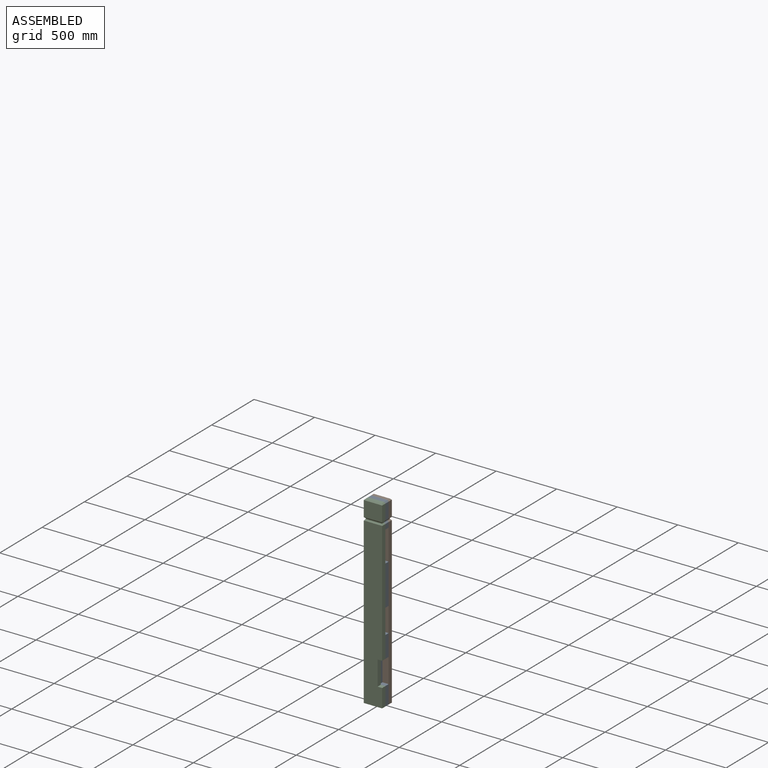
[diagram: assembled view]
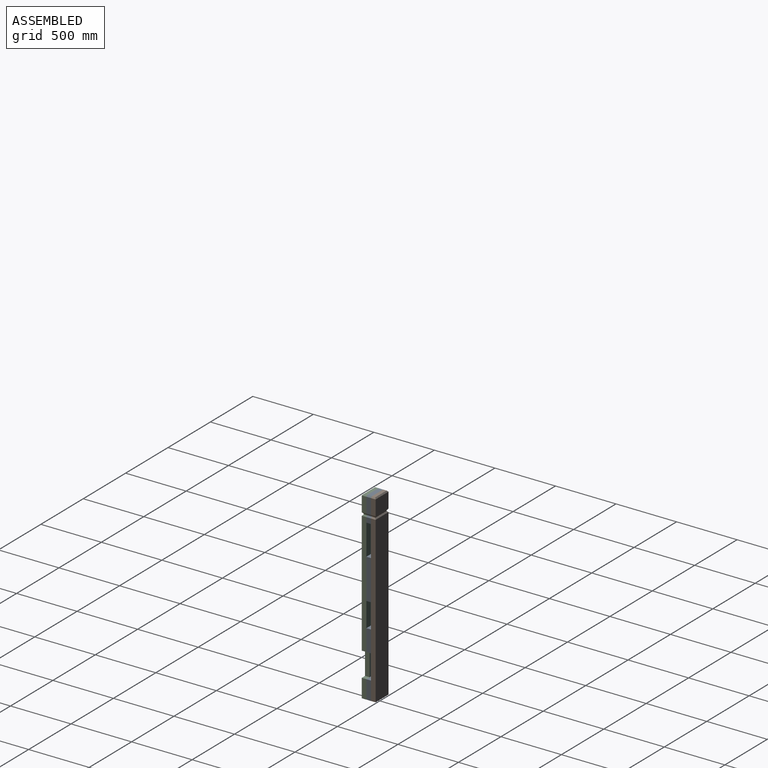
[diagram: assembled view, second angle]
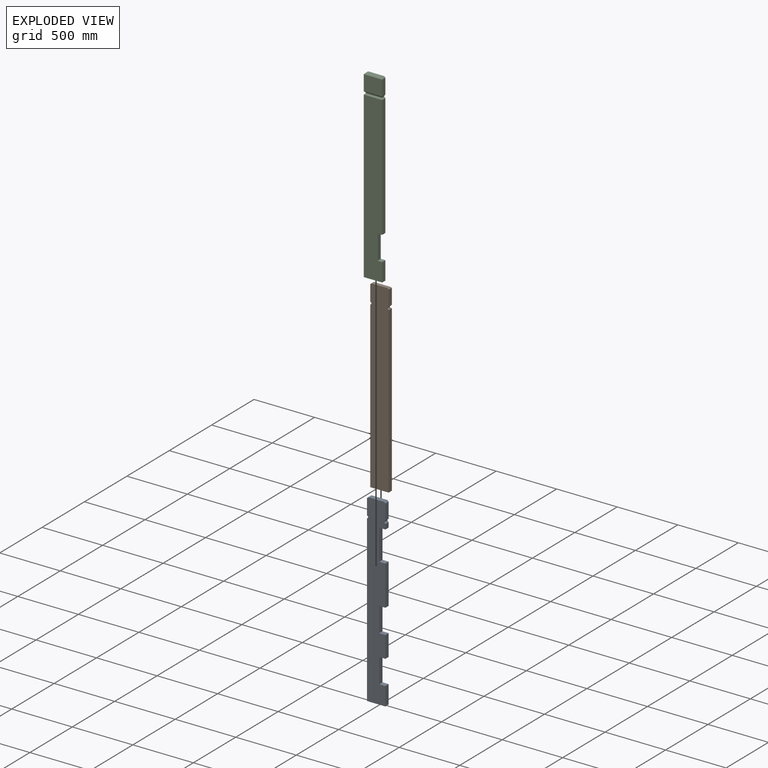
[diagram: exploded view]
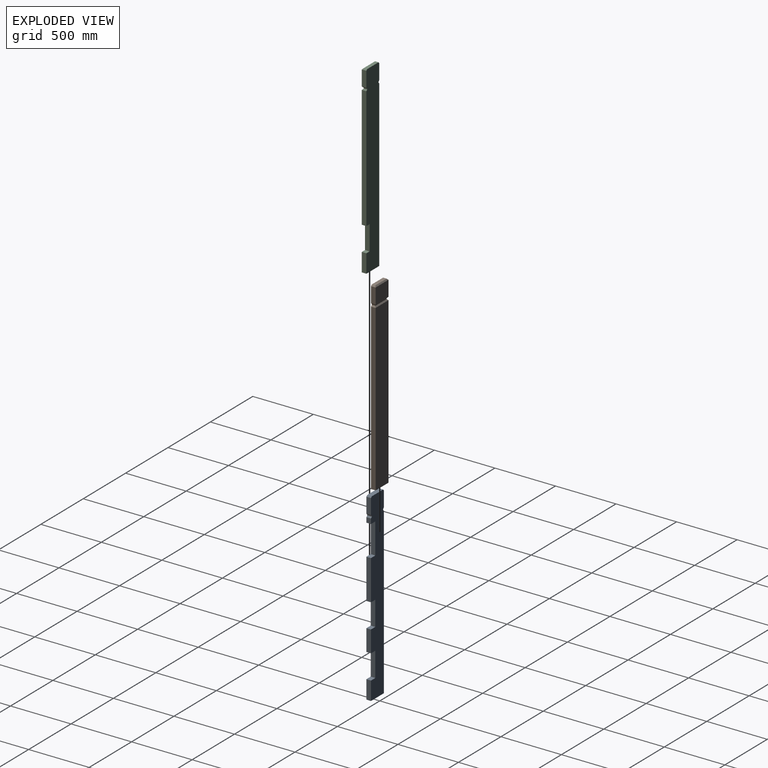
[diagram: exploded view, second angle]
ASSEMBLY  parts=3 mates=2
PART A: 28 faces, bbox 152.4x38.1x1524 mm
  f0: plane 177.8x38.1mm, normal (1,0,0), area 6774.2mm2, adj f4,f5,f13,f25
  f1: plane 127x38.1mm, normal (1,0,0), area 4838.7mm2, adj f4,f5,f20,f23
  f2: plane 127x38.1mm, normal (-1,0,0), area 4838.7mm2, adj f4,f5,f17,f24
  f3: plane 133.35x38.1mm, normal (0,0,1), area 5080.6mm2, adj f4,f5,f23,f24
  f4: plane 1524x152.4mm, normal (0,-1,0), area 198316.1mm2, adj f0,f1,f2,f3,f6,f7,f8,f9
  f5: plane 1524x152.4mm, normal (0,1,0), area 198316.1mm2, adj f0,f1,f2,f3,f6,f7,f8,f9
  f6: plane 41.28x38.1mm, normal (1,0,0), area 1572.6mm2, adj f4,f5,f14,f22
  f7: plane 330.2x38.1mm, normal (1,0,0), area 12580.6mm2, adj f4,f5,f11,f16
  f8: plane 1362.08x38.1mm, normal (-1,0,0), area 51895.1mm2, adj f4,f5,f9,f18
  f9: plane 152.4x38.1mm, normal (0,0,-1), area 5806.4mm2, adj f4,f5,f8,f10
  f10: plane 152.4x38.1mm, normal (1,0,0), area 5806.4mm2, adj f4,f5,f9,f27
  f11: plane 50.8x38.1mm, normal (0,0,-1), area 1935.5mm2, adj f4,f5,f7,f12
  f12: plane 203.2x38.1mm, normal (1,0,0), area 7741.9mm2, adj f4,f5,f11,f13
  f13: plane 50.8x38.1mm, normal (0,0,1), area 1935.5mm2, adj f0,f4,f5,f12
  f14: plane 50.8x38.1mm, normal (0,0,-1), area 1935.5mm2, adj f4,f5,f6,f15
  f15: plane 254x38.1mm, normal (1,0,0), area 9677.4mm2, adj f4,f5,f14,f16
  f16: plane 50.8x38.1mm, normal (0,0,1), area 1935.5mm2, adj f4,f5,f7,f15
  f17: plane 38.1x9.53mm, normal (-0.71,0,-0.71), area 513.2mm2, adj f2,f4,f5,f19
  f18: plane 38.1x9.53mm, normal (-0.71,0,0.71), area 513.2mm2, adj f4,f5,f8,f19
  f19: plane 38.1x6.35mm, normal (-1,0,0), area 241.9mm2, adj f4,f5,f17,f18
  f20: plane 38.1x9.53mm, normal (0.71,0,-0.71), area 513.2mm2, adj f1,f4,f5,f21
  f21: plane 38.1x6.35mm, normal (1,0,0), area 241.9mm2, adj f4,f5,f20,f22
  f22: plane 38.1x9.53mm, normal (0.71,0,0.71), area 513.2mm2, adj f4,f5,f6,f21
  f23: plane 38.1x9.53mm, normal (0.71,0,0.71), area 513.2mm2, adj f1,f3,f4,f5
  f24: plane 38.1x9.53mm, normal (-0.71,0,0.71), area 513.2mm2, adj f2,f3,f4,f5
  f25: plane 50.8x38.1mm, normal (0,0,-1), area 1935.5mm2, adj f0,f4,f5,f26
  f26: plane 203.2x38.1mm, normal (1,0,0), area 7741.9mm2, adj f4,f5,f25,f27
  f27: plane 50.8x38.1mm, normal (0,0,1), area 1935.5mm2, adj f4,f5,f10,f26
PART B: 21 faces, bbox 152.4x38.1x1524 mm
  f0: plane 152.4x127mm, normal (0,1,0), area 19354.8mm2, adj f3,f4,f17,f18
  f1: plane 38.1x9.53mm, normal (0.71,0,0.71), area 449.1mm2, adj f4,f5,f6,f17
  f2: plane 38.1x9.53mm, normal (-0.71,0,0.71), area 449.1mm2, adj f3,f5,f6,f17
  f3: plane 127x38.1mm, normal (-1,0,0), area 4838.7mm2, adj f0,f2,f6,f11
  f4: plane 127x38.1mm, normal (1,0,0), area 4838.7mm2, adj f0,f1,f6,f14
  f5: plane 133.35x28.58mm, normal (0,0,1), area 3810.5mm2, adj f1,f2,f6,f17
  f6: plane 1524x152.4mm, normal (0,-1,0), area 231864.5mm2, adj f1,f2,f3,f4,f5,f8,f9,f10
  f7: plane 1362.08x152.4mm, normal (0,1,0), area 207580.2mm2, adj f8,f9,f10,f20
  f8: plane 1362.08x38.1mm, normal (-1,0,0), area 51895.1mm2, adj f6,f7,f9,f12
  f9: plane 152.4x38.1mm, normal (0,0,-1), area 5806.4mm2, adj f6,f7,f8,f10
  f10: plane 1362.08x38.1mm, normal (1,0,0), area 51895.1mm2, adj f6,f7,f9,f16
  f11: plane 38.1x9.53mm, normal (-0.71,0,-0.71), area 449.1mm2, adj f3,f6,f13,f18
  f12: plane 38.1x9.53mm, normal (-0.71,0,0.71), area 449.1mm2, adj f6,f8,f13,f20
  f13: plane 28.58x6.35mm, normal (-1,0,0), area 181.5mm2, adj f6,f11,f12,f19
  f14: plane 38.1x9.53mm, normal (0.71,0,-0.71), area 449.1mm2, adj f4,f6,f15,f18
  f15: plane 28.58x6.35mm, normal (1,0,0), area 181.5mm2, adj f6,f14,f16,f19
  f16: plane 38.1x9.53mm, normal (0.71,0,0.71), area 449.1mm2, adj f6,f10,f15,f20
  f17: plane 152.4x9.53mm, normal (0,0.71,0.71), area 1924.6mm2, adj f0,f1,f2,f5
  f18: plane 152.4x9.53mm, normal (0,0.71,-0.71), area 1924.6mm2, adj f0,f11,f14,f19
  f19: plane 133.35x6.35mm, normal (0,1,0), area 846.8mm2, adj f13,f15,f18,f20
  f20: plane 152.4x9.53mm, normal (0,0.71,0.71), area 1924.6mm2, adj f7,f12,f16,f19
PART C: 25 faces, bbox 152.4x38.1x1524 mm
  f0: plane 133.35x28.58mm, normal (0,0,1), area 3810.5mm2, adj f12,f16,f17,f21
  f1: plane 152.4x127mm, normal (0,-1,0), area 19354.8mm2, adj f9,f10,f21,f22
  f2: plane 38.1x9.53mm, normal (-0.71,0,-0.71), area 449.1mm2, adj f4,f9,f12,f22
  f3: plane 38.1x9.53mm, normal (-0.71,0,0.71), area 449.1mm2, adj f4,f12,f13,f24
  f4: plane 28.58x6.35mm, normal (-1,0,0), area 181.5mm2, adj f2,f3,f12,f23
  f5: plane 38.1x9.53mm, normal (0.71,0,-0.71), area 449.1mm2, adj f6,f10,f12,f22
  f6: plane 28.58x6.35mm, normal (1,0,0), area 181.5mm2, adj f5,f7,f12,f23
  f7: plane 38.1x9.53mm, normal (0.71,0,0.71), area 449.1mm2, adj f6,f8,f12,f24
  f8: plane 1006.48x38.1mm, normal (1,0,0), area 38346.7mm2, adj f7,f11,f12,f18
  f9: plane 127x38.1mm, normal (-1,0,0), area 4838.7mm2, adj f1,f2,f12,f17
  f10: plane 127x38.1mm, normal (1,0,0), area 4838.7mm2, adj f1,f5,f12,f16
  f11: plane 1362.08x152.4mm, normal (0,-1,0), area 199838.3mm2, adj f8,f13,f14,f15,f18,f19,f20,f24
  f12: plane 1524x152.4mm, normal (0,1,0), area 224122.5mm2, adj f0,f2,f3,f4,f5,f6,f7,f8
  f13: plane 1362.08x38.1mm, normal (-1,0,0), area 51895.1mm2, adj f3,f11,f12,f14
  f14: plane 152.4x38.1mm, normal (0,0,-1), area 5806.4mm2, adj f11,f12,f13,f15
  f15: plane 152.4x38.1mm, normal (1,0,0), area 5806.4mm2, adj f11,f12,f14,f20
  f16: plane 38.1x9.53mm, normal (0.71,0,0.71), area 449.1mm2, adj f0,f10,f12,f21
  f17: plane 38.1x9.53mm, normal (-0.71,0,0.71), area 449.1mm2, adj f0,f9,f12,f21
  f18: plane 38.1x38.1mm, normal (0,0,-1), area 1451.6mm2, adj f8,f11,f12,f19
  f19: plane 203.2x38.1mm, normal (1,0,0), area 7741.9mm2, adj f11,f12,f18,f20
  f20: plane 38.1x38.1mm, normal (0,0,1), area 1451.6mm2, adj f11,f12,f15,f19
  f21: plane 152.4x9.53mm, normal (0,-0.71,0.71), area 1924.6mm2, adj f0,f1,f16,f17
  f22: plane 152.4x9.53mm, normal (0,-0.71,-0.71), area 1924.6mm2, adj f1,f2,f5,f23
  f23: plane 133.35x6.35mm, normal (0,-1,0), area 846.8mm2, adj f4,f6,f22,f24
  f24: plane 152.4x9.53mm, normal (0,-0.71,0.71), area 1924.6mm2, adj f3,f7,f11,f23
PLACE A t=(-76.2,-19.05,0)mm
PLACE B t=(-76.2,19.05,0)mm
PLACE C t=(-76.2,-57.15,0)mm
MATE fastened C.f14 <-> A.f9  axis (0,0,-1) through (0,-57.15,0)mm
MATE fastened B.f9 <-> A.f9  axis (0,0,-1) through (0,-19.05,0)mm
